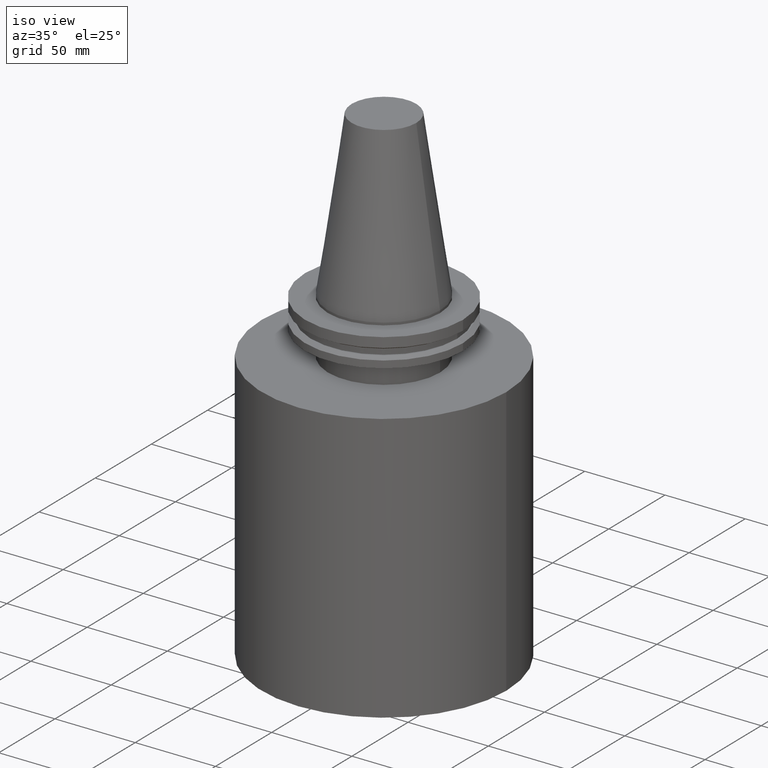
[diagram: clean part render]
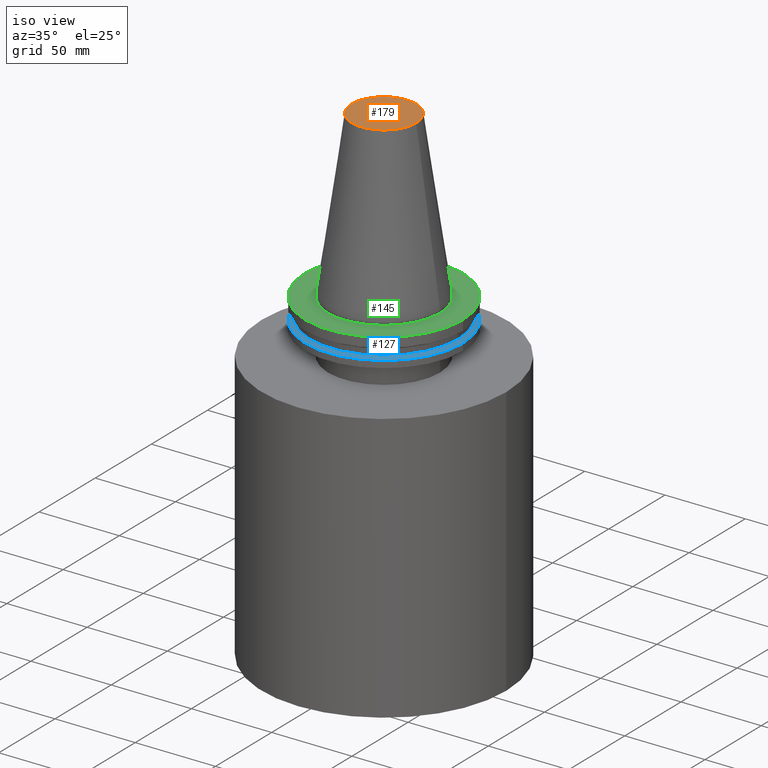
[diagram: same view with three faces highlighted in distinct colors, each labeled with its STEP entity id]
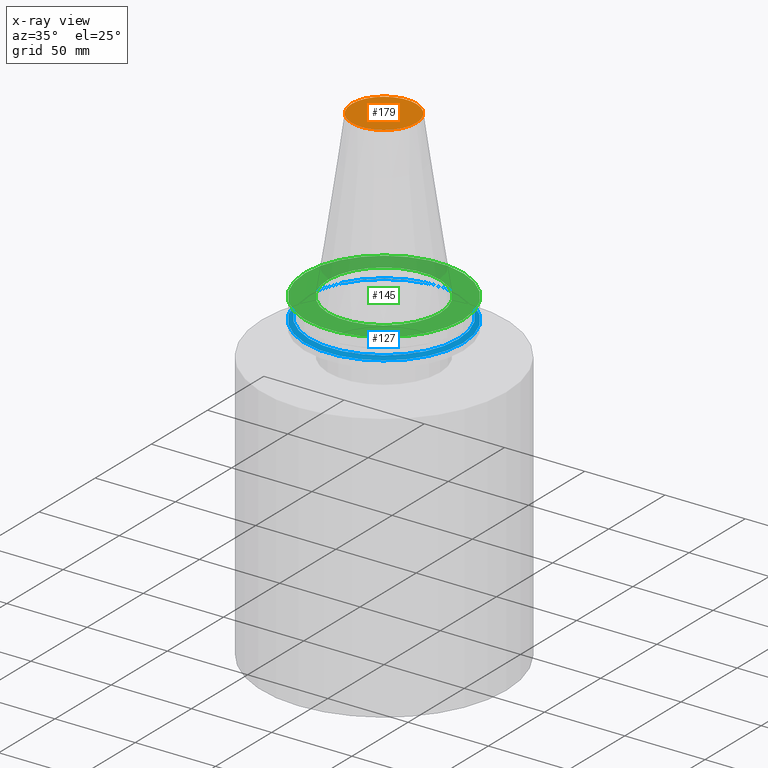
[diagram: x-ray of the same camera — body ghosted, the three highlighted faces saturated]
A machine part, iso view with three faces highlighted in distinct colors.
The next image is the same camera in x-ray (body ghosted, the three faces saturated) — at least one of them is partly hidden behind the body in this view.
Their STEP definitions:

[orange] entity #179 — the highlighted planar face has unit normal (0, 0, -1).
#23 = CARTESIAN_POINT ( 'NONE',  ( 0.000000000000000000, 20.10819343178871321, 101.5999999999999943 ) ) ;
#29 = VERTEX_POINT ( 'NONE', #118 ) ;
#45 = CARTESIAN_POINT ( 'NONE',  ( 0.000000000000000000, 0.000000000000000000, 101.5999999999999801 ) ) ;
#48 = PLANE ( 'NONE',  #188 ) ;
#79 = DIRECTION ( 'NONE',  ( 0.000000000000000000, 0.000000000000000000, -1.000000000000000000 ) ) ;
#118 = CARTESIAN_POINT ( 'NONE',  ( 20.10819343178871321, 0.000000000000000000, 101.5999999999999801 ) ) ;
#128 = EDGE_LOOP ( 'NONE', ( #277 ) ) ;
#129 = EDGE_CURVE ( 'NONE', #29, #29, #312, .T. ) ;
#179 = ADVANCED_FACE ( 'NONE', ( #295 ), #48, .F. ) ;
#188 = AXIS2_PLACEMENT_3D ( 'NONE', #23, #79, #227 ) ;
#194 = DIRECTION ( 'NONE',  ( 1.000000000000000000, 0.000000000000000000, 0.000000000000000000 ) ) ;
#227 = DIRECTION ( 'NONE',  ( -1.000000000000000000, 0.000000000000000000, -0.000000000000000000 ) ) ;
#277 = ORIENTED_EDGE ( 'NONE', *, *, #129, .T. ) ;
#295 = FACE_OUTER_BOUND ( 'NONE', #128, .T. ) ;
#312 = CIRCLE ( 'NONE', #333, 20.10819343178871321 ) ;
#333 = AXIS2_PLACEMENT_3D ( 'NONE', #45, #358, #194 ) ;
#358 = DIRECTION ( 'NONE',  ( -0.000000000000000000, -0.000000000000000000, 1.000000000000000000 ) ) ;

[blue] entity #127 — the highlighted conical surface has half-angle 60 deg.
#4 = AXIS2_PLACEMENT_3D ( 'NONE', #364, #6, #366 ) ;
#6 = DIRECTION ( 'NONE',  ( -0.000000000000000000, -0.000000000000000000, 1.000000000000000000 ) ) ;
#10 = CONICAL_SURFACE ( 'NONE', #225, 49.21499999999998920, 1.047197551196554333 ) ;
#13 = CARTESIAN_POINT ( 'NONE',  ( 46.43919780457007818, 0.000000000000000000, -13.05499999999999794 ) ) ;
#54 = CARTESIAN_POINT ( 'NONE',  ( 0.000000000000000000, 0.000000000000000000, -14.65761014474876944 ) ) ;
#55 = CIRCLE ( 'NONE', #80, 49.21499999999998920 ) ;
#80 = AXIS2_PLACEMENT_3D ( 'NONE', #201, #262, #359 ) ;
#84 = FACE_BOUND ( 'NONE', #279, .T. ) ;
#111 = CIRCLE ( 'NONE', #4, 46.43919780457007818 ) ;
#120 = EDGE_CURVE ( 'NONE', #174, #174, #55, .T. ) ;
#127 = ADVANCED_FACE ( 'NONE', ( #84, #229 ), #10, .T. ) ;
#165 = DIRECTION ( 'NONE',  ( 0.000000000000000000, 0.000000000000000000, -1.000000000000000000 ) ) ;
#174 = VERTEX_POINT ( 'NONE', #206 ) ;
#201 = CARTESIAN_POINT ( 'NONE',  ( 0.000000000000000000, 0.000000000000000000, -14.65761014474876944 ) ) ;
#206 = CARTESIAN_POINT ( 'NONE',  ( 49.21499999999998920, 0.000000000000000000, -14.65761014474876944 ) ) ;
#225 = AXIS2_PLACEMENT_3D ( 'NONE', #54, #165, #226 ) ;
#226 = DIRECTION ( 'NONE',  ( -1.000000000000000000, 0.000000000000000000, 0.000000000000000000 ) ) ;
#229 = FACE_OUTER_BOUND ( 'NONE', #307, .T. ) ;
#235 = ORIENTED_EDGE ( 'NONE', *, *, #294, .F. ) ;
#262 = DIRECTION ( 'NONE',  ( -0.000000000000000000, -0.000000000000000000, 1.000000000000000000 ) ) ;
#279 = EDGE_LOOP ( 'NONE', ( #235 ) ) ;
#285 = VERTEX_POINT ( 'NONE', #13 ) ;
#294 = EDGE_CURVE ( 'NONE', #285, #285, #111, .T. ) ;
#307 = EDGE_LOOP ( 'NONE', ( #372 ) ) ;
#359 = DIRECTION ( 'NONE',  ( 1.000000000000000000, 0.000000000000000000, 0.000000000000000000 ) ) ;
#364 = CARTESIAN_POINT ( 'NONE',  ( 0.000000000000000000, 0.000000000000000000, -13.05499999999999794 ) ) ;
#366 = DIRECTION ( 'NONE',  ( 1.000000000000000000, 0.000000000000000000, 0.000000000000000000 ) ) ;
#372 = ORIENTED_EDGE ( 'NONE', *, *, #120, .T. ) ;

[green] entity #145 — the highlighted planar face has unit normal (0, 0, -1).
#7 = ORIENTED_EDGE ( 'NONE', *, *, #33, .T. ) ;
#33 = EDGE_CURVE ( 'NONE', #232, #232, #382, .T. ) ;
#64 = DIRECTION ( 'NONE',  ( -0.000000000000000000, -0.000000000000000000, 1.000000000000000000 ) ) ;
#87 = DIRECTION ( 'NONE',  ( 1.000000000000000000, 0.000000000000000000, 0.000000000000000000 ) ) ;
#103 = AXIS2_PLACEMENT_3D ( 'NONE', #335, #64, #87 ) ;
#145 = ADVANCED_FACE ( 'NONE', ( #385, #323 ), #263, .F. ) ;
#163 = DIRECTION ( 'NONE',  ( 1.000000000000000000, 0.000000000000000000, 0.000000000000000000 ) ) ;
#204 = CARTESIAN_POINT ( 'NONE',  ( 49.21499999999999631, 0.000000000000000000, -1.499999999999987566 ) ) ;
#209 = AXIS2_PLACEMENT_3D ( 'NONE', #215, #218, #163 ) ;
#215 = CARTESIAN_POINT ( 'NONE',  ( 0.000000000000000000, 0.000000000000000000, -1.499999999999987566 ) ) ;
#218 = DIRECTION ( 'NONE',  ( -0.000000000000000000, -0.000000000000000000, 1.000000000000000000 ) ) ;
#223 = CARTESIAN_POINT ( 'NONE',  ( 0.000000000000000000, 49.21499999999999631, -1.499999999999992895 ) ) ;
#232 = VERTEX_POINT ( 'NONE', #204 ) ;
#255 = DIRECTION ( 'NONE',  ( -1.000000000000000000, 0.000000000000000000, -0.000000000000000000 ) ) ;
#261 = CARTESIAN_POINT ( 'NONE',  ( 34.92499999999999005, 0.000000000000000000, -1.499999999999987566 ) ) ;
#263 = PLANE ( 'NONE',  #281 ) ;
#278 = VERTEX_POINT ( 'NONE', #261 ) ;
#281 = AXIS2_PLACEMENT_3D ( 'NONE', #223, #325, #255 ) ;
#282 = CIRCLE ( 'NONE', #103, 34.92499999999999005 ) ;
#283 = EDGE_LOOP ( 'NONE', ( #367 ) ) ;
#314 = EDGE_CURVE ( 'NONE', #278, #278, #282, .T. ) ;
#315 = EDGE_LOOP ( 'NONE', ( #7 ) ) ;
#323 = FACE_OUTER_BOUND ( 'NONE', #315, .T. ) ;
#325 = DIRECTION ( 'NONE',  ( 0.000000000000000000, 0.000000000000000000, -1.000000000000000000 ) ) ;
#335 = CARTESIAN_POINT ( 'NONE',  ( 0.000000000000000000, 0.000000000000000000, -1.499999999999987566 ) ) ;
#367 = ORIENTED_EDGE ( 'NONE', *, *, #314, .F. ) ;
#382 = CIRCLE ( 'NONE', #209, 49.21499999999999631 ) ;
#385 = FACE_BOUND ( 'NONE', #283, .T. ) ;